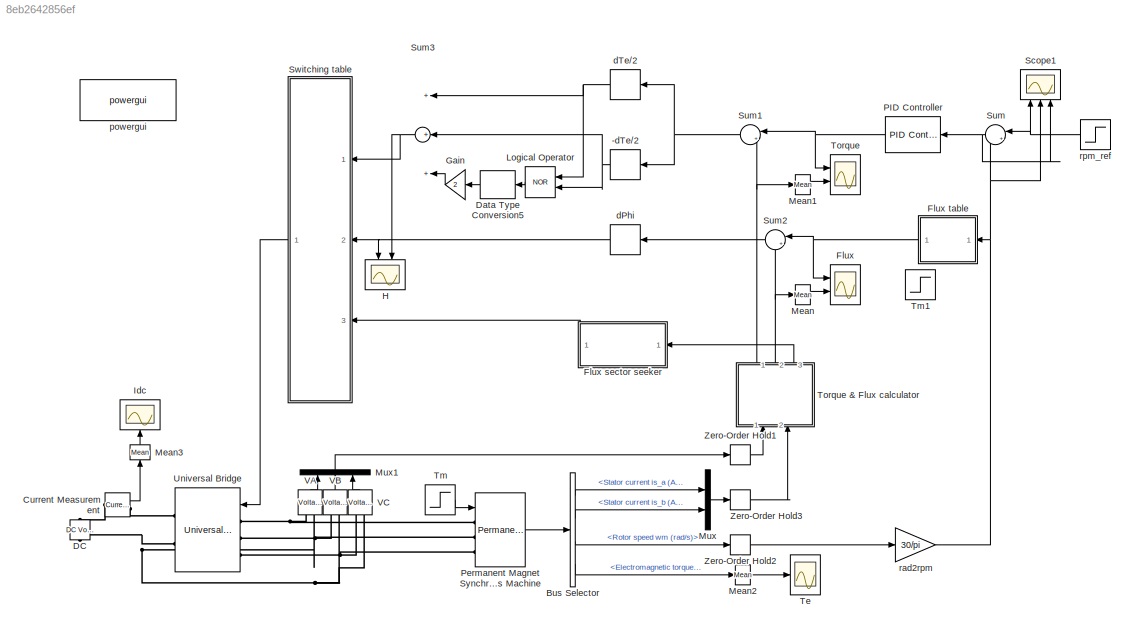
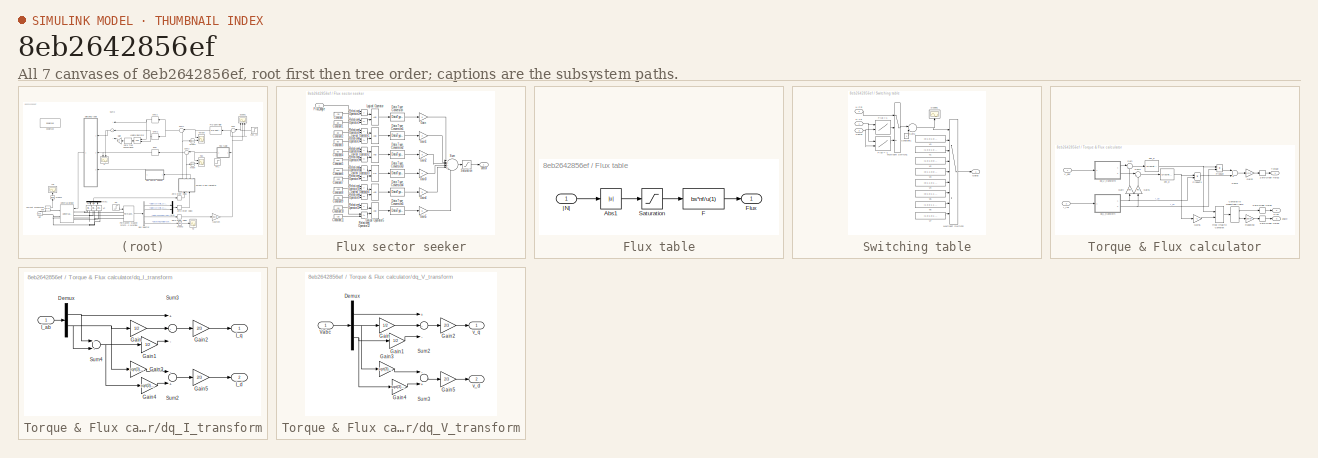
[diagram: thumbnail index - all 7 canvases of the model, root first then tree order]
MODEL slx_8eb2642856ef
KIND model
BLOCK [Relay] -dTe//2
  OffOutputValue = 3
  OffSwitchValue = -1/20000
  OnOutputValue = 0
  OnSwitchValue = 0
BLOCK [BusSelector] Bus Selector
  OutputSignals = Stator current is_a (A),Stator current is_b (A),Rotor speed wm (rad/s),Electromagnetic torque Te (N*m)
  Ports = [1, 4]
BLOCK [Reference] Current Measurement  REF=powerlib/Measurements/Current Measurement
  OutputType = Complex
  PSBequivalent = 0
  PhasorSimulation = off
  Ports = [0, 1, 0, 0, 0, 1, 1]
  SourceBlock = powerlib/Measurements/Current Measurement
  SourceType = Current Measurement
BLOCK [Reference] DC  REF=powerlib/Electrical
Sources/DC Voltage Source
  Amplitude = 48
  Measurements = None
  Ports = [0, 0, 0, 0, 0, 1, 1]
  SourceBlock = powerlib/Electrical\nSources/DC Voltage Source
  SourceType = DC Voltage Source
BLOCK [DataTypeConversion] Data Type Conversion5
BLOCK [Scope] Flux
  DataFormat = StructureWithTime
  Floating = off
  LimitDataPoints = off
  NumInputPorts = 2
  Ports = [2]
  SampleTime = 0
  SaveName = ScopeData2
  ShowLegends = off
  YMax = 0.01~0.011
  YMin = 0.001~0
  ZoomMode = yonly
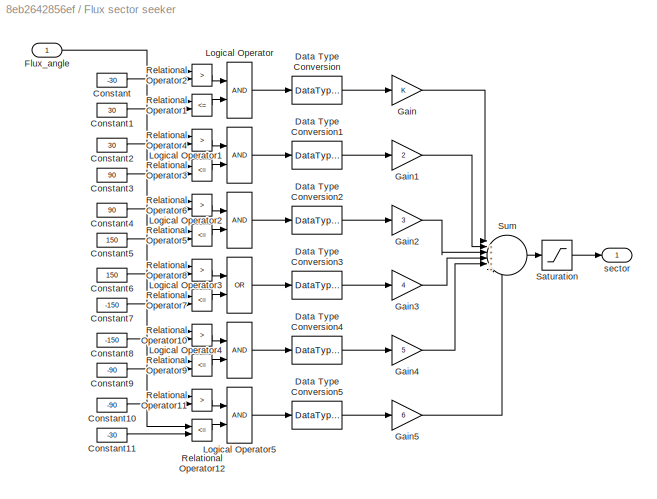
BLOCK [SubSystem] Flux sector seeker
  AncestorBlock = electricdrivelib/AC drives/DTC Induction Motor Drive/DTC/Flux sector seeker
  FunctionWithSeparateData = off
  MaskHideContents = off
  MinAlgLoopOccurrences = off
  Opaque = off
  Ports = [1, 1]
  PropExecContextOutsideSubsystem = off
  RTWSystemCode = Auto
  RequestExecContextInheritance = off
BLOCK [Constant] Flux sector seeker/Constant
  Value = -30
BLOCK [Constant] Flux sector seeker/Constant1
  Value = 30
BLOCK [Constant] Flux sector seeker/Constant10
  Value = -90
BLOCK [Constant] Flux sector seeker/Constant11
  Value = -30
BLOCK [Constant] Flux sector seeker/Constant2
  Value = 30
BLOCK [Constant] Flux sector seeker/Constant3
  Value = 90
BLOCK [Constant] Flux sector seeker/Constant4
  Value = 90
BLOCK [Constant] Flux sector seeker/Constant5
  Value = 150
BLOCK [Constant] Flux sector seeker/Constant6
  Value = 150
BLOCK [Constant] Flux sector seeker/Constant7
  Value = -150
BLOCK [Constant] Flux sector seeker/Constant8
  Value = -150
BLOCK [Constant] Flux sector seeker/Constant9
  Value = -90
BLOCK [DataTypeConversion] Flux sector seeker/Data Type Conversion
BLOCK [DataTypeConversion] Flux sector seeker/Data Type Conversion1
BLOCK [DataTypeConversion] Flux sector seeker/Data Type Conversion2
BLOCK [DataTypeConversion] Flux sector seeker/Data Type Conversion3
BLOCK [DataTypeConversion] Flux sector seeker/Data Type Conversion4
BLOCK [DataTypeConversion] Flux sector seeker/Data Type Conversion5
BLOCK [Inport] Flux sector seeker/Flux_angle
  IconDisplay = Port number
BLOCK [Gain] Flux sector seeker/Gain
BLOCK [Gain] Flux sector seeker/Gain1
  Gain = 2
BLOCK [Gain] Flux sector seeker/Gain2
  Gain = 3
BLOCK [Gain] Flux sector seeker/Gain3
  Gain = 4
BLOCK [Gain] Flux sector seeker/Gain4
  Gain = 5
BLOCK [Gain] Flux sector seeker/Gain5
  Gain = 6
BLOCK [Logic] Flux sector seeker/Logical Operator
  Ports = [2, 1]
BLOCK [Logic] Flux sector seeker/Logical Operator1
  Ports = [2, 1]
BLOCK [Logic] Flux sector seeker/Logical Operator2
  Ports = [2, 1]
BLOCK [Logic] Flux sector seeker/Logical Operator3
  Operator = OR
  Ports = [2, 1]
BLOCK [Logic] Flux sector seeker/Logical Operator4
  Ports = [2, 1]
BLOCK [Logic] Flux sector seeker/Logical Operator5
  Ports = [2, 1]
BLOCK [RelationalOperator] Flux sector seeker/Relational Operator1
  Operator = <=
  Ports = [2, 1]
BLOCK [RelationalOperator] Flux sector seeker/Relational Operator10
  Operator = >
  Ports = [2, 1]
BLOCK [RelationalOperator] Flux sector seeker/Relational Operator11
  Operator = >
  Ports = [2, 1]
BLOCK [RelationalOperator] Flux sector seeker/Relational Operator12
  Operator = <=
  Ports = [2, 1]
BLOCK [RelationalOperator] Flux sector seeker/Relational Operator2
  Operator = >
  Ports = [2, 1]
BLOCK [RelationalOperator] Flux sector seeker/Relational Operator3
  Operator = <=
  Ports = [2, 1]
BLOCK [RelationalOperator] Flux sector seeker/Relational Operator4
  Operator = >
  Ports = [2, 1]
BLOCK [RelationalOperator] Flux sector seeker/Relational Operator5
  Operator = <=
  Ports = [2, 1]
BLOCK [RelationalOperator] Flux sector seeker/Relational Operator6
  Operator = >
  Ports = [2, 1]
BLOCK [RelationalOperator] Flux sector seeker/Relational Operator7
  Operator = <=
  Ports = [2, 1]
BLOCK [RelationalOperator] Flux sector seeker/Relational Operator8
  Operator = >
  Ports = [2, 1]
BLOCK [RelationalOperator] Flux sector seeker/Relational Operator9
  Operator = <=
  Ports = [2, 1]
BLOCK [Saturate] Flux sector seeker/Saturation
  InputPortMap = u0
  LowerLimit = 1
  Ports = [1, 1]
  UpperLimit = 6
BLOCK [Sum] Flux sector seeker/Sum
  IconShape = round
  Inputs = |++++++
  Ports = [6, 1]
BLOCK [Outport] Flux sector seeker/sector
  IconDisplay = Port number
BLOCK [SubSystem] Flux table
  AncestorBlock = DriveInternalModels/AC drives/Speed Controller AC345/Speed Controller/Flux table
  FunctionWithSeparateData = off
  MaskHideContents = off
  MinAlgLoopOccurrences = off
  Opaque = off
  Ports = [1, 1]
  PropExecContextOutsideSubsystem = off
  RTWSystemCode = Auto
  RequestExecContextInheritance = off
BLOCK [Abs] Flux table/Abs1
BLOCK [Fcn] Flux table/F
  Expr = bs*nf/u(1)
BLOCK [Outport] Flux table/Flux
  IconDisplay = Port number
BLOCK [Saturate] Flux table/Saturation
  InputPortMap = u0
  LowerLimit = bs
  Ports = [1, 1]
  UpperLimit = inf
BLOCK [Inport] Flux table/|N|
  IconDisplay = Port number
BLOCK [Gain] Gain
  Gain = 2
BLOCK [Scope] H
  DataFormat = StructureWithTime
  Floating = off
  LimitDataPoints = off
  NumInputPorts = 2
  Ports = [2]
  SampleTime = 0
  SaveName = ScopeData6
  ShowLegends = off
  YMax = 3~4
  YMin = 0~0
  ZoomMode = xonly
BLOCK [Scope] Idc
  DataFormat = StructureWithTime
  Floating = off
  LimitDataPoints = off
  NumInputPorts = 1
  Ports = [1]
  SampleTime = 0
  ShowLegends = off
  YMax = 200
  YMin = -200
  ZoomMode = yonly
BLOCK [Logic] Logical Operator
  AllPortsSameDT = off
  Operator = NOR
  Ports = [2, 1]
BLOCK [Reference] Mean  REF=powerlib_meascontrol/Measurements/Mean
  Freq = 10
  Ports = [1, 1]
  SourceBlock = powerlib_meascontrol/Measurements/Mean
  SourceType = Mean
  Ts = 0
  Vinit = 0
BLOCK [Reference] Mean1  REF=powerlib_meascontrol/Measurements/Mean
  Freq = 10
  Ports = [1, 1]
  SourceBlock = powerlib_meascontrol/Measurements/Mean
  SourceType = Mean
  Ts = 0
  Vinit = 0
BLOCK [Reference] Mean2  REF=powerlib_meascontrol/Measurements/Mean
  Freq = 10
  Ports = [1, 1]
  SourceBlock = powerlib_meascontrol/Measurements/Mean
  SourceType = Mean
  Ts = 0
  Vinit = 0
BLOCK [Reference] Mean3  REF=powerlib_meascontrol/Measurements/Mean
  Freq = 10
  Ports = [1, 1]
  SourceBlock = powerlib_meascontrol/Measurements/Mean
  SourceType = Mean
  Ts = 0
  Vinit = 0
BLOCK [Mux] Mux
  DisplayOption = bar
  Inputs = 2
  Ports = [2, 1]
BLOCK [Mux] Mux1
  DisplayOption = bar
  Inputs = 3
  Ports = [3, 1]
BLOCK [Reference] PID Controller  REF=simulink/Continuous/PID Controller
  AntiWindupMode = none
  Controller = PID
  D = 0
  DOutDataTypeStr = Inherit: Inherit via internal rule
  DOutMax = []
  DOutMin = []
  DParamDataTypeStr = Inherit: Inherit via internal rule
  DParamMax = []
  DParamMin = []
  ExternalReset = none
  FilterContinuousStateAttributes = ''
  FilterMethod = Forward Euler
  FilterOutDataTypeStr = Inherit: Inherit via internal rule
  FilterOutMax = []
  FilterOutMin = []
  FilterRTWStateStorageClass = Auto
  FilterStateMustResolveToSignalObject = off
  Form = Parallel
  I = 0.001
  IOutDataTypeStr = Inherit: Inherit via internal rule
  IOutMax = []
  IOutMin = []
  IParamDataTypeStr = Inherit: Inherit via internal rule
  IParamMax = []
  IParamMin = []
  IgnoreLimit = off
  InitialConditionForFilter = 0
  InitialConditionForIntegrator = 0
  InitialConditionSource = internal
  IntegratorContinuousStateAttributes = ''
  IntegratorMethod = Forward Euler
  IntegratorOutDataTypeStr = Inherit: Inherit via internal rule
  IntegratorOutMax = []
  IntegratorOutMin = []
  IntegratorRTWStateStorageClass = Auto
  IntegratorStateMustResolveToSignalObject = off
  Kb = 1
  KbOutDataTypeStr = Inherit: Inherit via internal rule
  KbOutMax = []
  KbOutMin = []
  KbParamDataTypeStr = Inherit: Inherit via internal rule
  KbParamMax = []
  KbParamMin = []
  Kt = 1
  KtOutDataTypeStr = Inherit: Inherit via internal rule
  KtOutMax = []
  KtOutMin = []
  KtParamDataTypeStr = Inherit: Inherit via internal rule
  KtParamMax = []
  KtParamMin = []
  LimitOutput = on
  LinearizeAsGain = on
  LockScale = off
  LowerSaturationLimit = -20
  N = 100
  NOutDataTypeStr = Inherit: Inherit via internal rule
  NOutMax = []
  NOutMin = []
  NParamDataTypeStr = Inherit: Inherit via internal rule
  NParamMax = []
  NParamMin = []
  P = 0.0001
  POutDataTypeStr = Inherit: Inherit via internal rule
  POutMax = []
  POutMin = []
  PParamDataTypeStr = Inherit: Inherit via internal rule
  PParamMax = []
  PParamMin = []
  Ports = [1, 1]
  RndMeth = Floor
  SampleTime = 1
  SaturateOnIntegerOverflow = off
  SaturationOutDataTypeStr = Inherit: Same as input
  SaturationOutMax = []
  SaturationOutMin = []
  SourceBlock = simulink/Continuous/PID Controller
  SourceType = PID 1dof
  SumAccumDataTypeStr = Inherit: Inherit via internal rule
  SumDAccumDataTypeStr = Inherit: Inherit via internal rule
  SumDOutDataTypeStr = Inherit: Inherit via internal rule
  SumDOutMax = []
  SumDOutMin = []
  SumI1AccumDataTypeStr = Inherit: Inherit via internal rule
  SumI1OutDataTypeStr = Inherit: Inherit via internal rule
  SumI1OutMax = []
  SumI1OutMin = []
  SumI2AccumDataTypeStr = Inherit: Inherit via internal rule
  SumI2OutDataTypeStr = Inherit: Inherit via internal rule
  SumI2OutMax = []
  SumI2OutMin = []
  SumI3AccumDataTypeStr = Inherit: Inherit via internal rule
  SumI3OutDataTypeStr = Inherit: Inherit via internal rule
  SumI3OutMax = []
  SumI3OutMin = []
  SumOutDataTypeStr = Inherit: Inherit via internal rule
  SumOutMax = []
  SumOutMin = []
  TimeDomain = Continuous-time
  TrackingMode = off
  UpperSaturationLimit = 20
  ZeroCross = on
BLOCK [Reference] Permanent Magnet Synchronous Machine  REF=powerlib/Machines/Permanent Magnet
Synchronous Machine
  Flat = 120
  Flux = 0.0125
  FluxDistribution = Trapezoidal
  Inductance = 1e-4
  InitialConditions = [0,0, 0,0]
  InitialConditions5ph = [0 0 0 0 0 0]
  La = 0.000835
  MachineConstant = Torque Constant (N.m / A_peak)
  Mechanical = [1e-3 1e-7 4 0]
  MechanicalLoad = Torque Tm
  NbPhases = 3
  PolePairs = 4
  Ports = [1, 1, 0, 0, 0, 3]
  PresetModel = No
  RefAngle = 90 degrees behind phase A axis (modified Park)
  Resistance = 0.01
  RotorType = Round
  ShowDetailedParameters = on
  SourceBlock = powerlib/Machines/Permanent Magnet\nSynchronous Machine
  SourceType = Permanent Magnet Synchronous Machine
  TorqueCst = 0.1
  TsBlock = -1
  TsPowergui = 0
  VoltageCst = 10.472
  dqInductances = [8.5e-3,8.5e-3]
BLOCK [Scope] Scope1
  DataFormat = StructureWithTime
  Floating = off
  LimitDataPoints = off
  NumInputPorts = 3
  Ports = [3]
  SampleTime = 0
  SaveName = ScopeData1
  ShowLegends = off
  YMax = 5000~5000~1000
  YMin = -5000~-5000~-1000
  ZoomMode = xonly
BLOCK [Sum] Sum
  IconShape = round
  InputSameDT = off
  Inputs = |+-
  OutDataTypeStr = Inherit: Inherit via internal rule
  Ports = [2, 1]
  SaturateOnIntegerOverflow = off
BLOCK [Sum] Sum1
  IconShape = round
  InputSameDT = off
  Inputs = |+-
  OutDataTypeStr = Inherit: Inherit via internal rule
  Ports = [2, 1]
BLOCK [Sum] Sum2
  IconShape = round
  InputSameDT = off
  Inputs = |+-
  OutDataTypeStr = Inherit: Inherit via internal rule
  Ports = [2, 1]
BLOCK [Sum] Sum3
  InputSameDT = off
  Inputs = +++
  OutDataTypeStr = Inherit: Inherit via internal rule
  Ports = [3, 1]
BLOCK [SubSystem] Switching table
  AncestorBlock = electricdrivelib/AC drives/DTC Induction Motor Drive/DTC/Switching table
  FunctionWithSeparateData = off
  MaskHideContents = off
  MinAlgLoopOccurrences = off
  Opaque = off
  Ports = [3, 1]
  PropExecContextOutsideSubsystem = off
  RTWSystemCode = Auto
  RequestExecContextInheritance = off
BLOCK [Constant] Switching table/Constant1
BLOCK [Lookup2D] Switching table/Flux = -1
  ColumnIndex = [1;2;3;4;5;6]
  InputSameDT = off
  RowIndex = [1;2;3]
  Table = [3 4 5 6 1 2;7 0 7 0 7 0;5 6 1 2 3 4]
BLOCK [Lookup2D] Switching table/Flux = 1
  ColumnIndex = [1;2;3;4;5;6]
  InputSameDT = off
  RowIndex = [1;2;3]
  Table = [2 3 4 5 6 1;0 7 0 7 0 7;6 1 2 3 4 5]
BLOCK [Outport] Switching table/Gates
  IconDisplay = Port number
BLOCK [Inport] Switching table/H Phi
  IconDisplay = Port number
  Port = 2
BLOCK [Inport] Switching table/H Te
  IconDisplay = Port number
BLOCK [MultiPortSwitch] Switching table/Multiport Switch1
  InputSameDT = off
  Inputs = 2
  Ports = [3, 1]
BLOCK [MultiPortSwitch] Switching table/Multiport Switch2
  InputSameDT = off
  Inputs = 8
  Ports = [9, 1]
BLOCK [Scope] Switching table/Scope1
  DataFormat = StructureWithTime
  Floating = off
  LimitDataPoints = off
  NumInputPorts = 1
  Ports = [1]
  SampleTime = 0
  SaveName = ScopeData4
  ShowLegends = off
  YMax = 10
  YMin = -1
  ZoomMode = xonly
BLOCK [Inport] Switching table/Sector
  IconDisplay = Port number
  Port = 3
BLOCK [Sum] Switching table/Sum1
  IconShape = round
  InputSameDT = off
  Inputs = |++
  OutDataTypeStr = Inherit: Inherit via internal rule
  Ports = [2, 1]
BLOCK [Constant] Switching table/v0
  Value = [0 1 0 1 0 1]
BLOCK [Constant] Switching table/v1
  Value = [1 0 0 1 0 1]
BLOCK [Constant] Switching table/v2
  Value = [1 0 1 0 0 1]
BLOCK [Constant] Switching table/v3
  Value = [0 1 1 0 0 1]
BLOCK [Constant] Switching table/v4
  Value = [0 1 1 0 1 0]
BLOCK [Constant] Switching table/v5
  Value = [0 1 0 1 1 0]
BLOCK [Constant] Switching table/v6
  Value = [1 0 0 1 1 0]
BLOCK [Constant] Switching table/v7
  Value = [1 0 1 0 1 0]
BLOCK [Scope] Te
  DataFormat = StructureWithTime
  Floating = off
  LimitDataPoints = off
  NumInputPorts = 1
  Ports = [1]
  SampleTime = 0
  SaveName = ScopeData5
  ShowLegends = off
  YMax = 4
  YMin = -4
  ZoomMode = yonly
BLOCK [Step] Tm
  After = 0
  SampleTime = 0
  Time = 2
BLOCK [Step] Tm1
  After = 0.05
  Before = 0.01
  SampleTime = 0
  Time = 2
BLOCK [Scope] Torque
  DataFormat = StructureWithTime
  Floating = off
  LimitDataPoints = off
  NumInputPorts = 2
  Ports = [2]
  SampleTime = 0
  SaveName = ScopeData3
  ShowLegends = off
  YMax = 5~5
  YMin = -5~-5
  ZoomMode = yonly
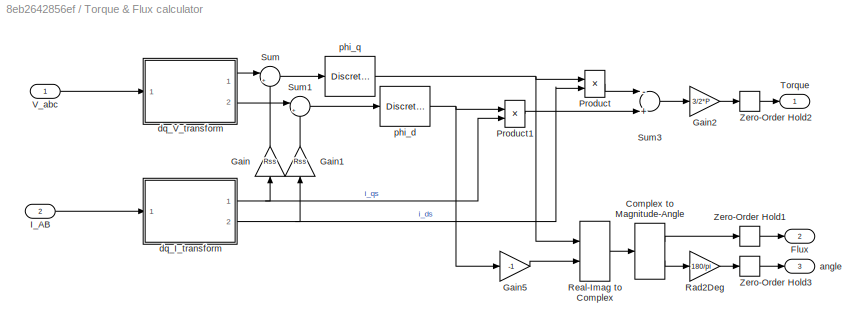
BLOCK [SubSystem] Torque & Flux calculator
  AncestorBlock = electricdrivelib/AC drives/DTC Induction Motor Drive/DTC/Torque & Flux calculator
  FunctionWithSeparateData = off
  MaskHideContents = off
  MinAlgLoopOccurrences = off
  Opaque = off
  Ports = [2, 3]
  PropExecContextOutsideSubsystem = off
  RTWSystemCode = Auto
  RequestExecContextInheritance = off
BLOCK [ComplexToMagnitudeAngle] Torque & Flux calculator/Complex to Magnitude-Angle
  Ports = [1, 2]
BLOCK [Outport] Torque & Flux calculator/Flux
  IconDisplay = Port number
  Port = 2
BLOCK [Gain] Torque & Flux calculator/Gain
  Gain = Rss
BLOCK [Gain] Torque & Flux calculator/Gain1
  Gain = Rss
BLOCK [Gain] Torque & Flux calculator/Gain2
  Gain = 3/2*P
BLOCK [Gain] Torque & Flux calculator/Gain5
  Gain = -1
BLOCK [Inport] Torque & Flux calculator/I_AB
  IconDisplay = Port number
  Port = 2
BLOCK [Product] Torque & Flux calculator/Product
  InputSameDT = off
  Ports = [2, 1]
  RndMeth = Floor
BLOCK [Product] Torque & Flux calculator/Product1
  InputSameDT = off
  Ports = [2, 1]
  RndMeth = Floor
BLOCK [Gain] Torque & Flux calculator/Rad2Deg
  Gain = 180/pi
BLOCK [RealImagToComplex] Torque & Flux calculator/Real-Imag to Complex
  Ports = [2, 1]
BLOCK [Sum] Torque & Flux calculator/Sum
  IconShape = round
  InputSameDT = off
  Inputs = |+-
  OutDataTypeStr = Inherit: Inherit via internal rule
  Ports = [2, 1]
BLOCK [Sum] Torque & Flux calculator/Sum1
  IconShape = round
  InputSameDT = off
  Inputs = |+-
  OutDataTypeStr = Inherit: Inherit via internal rule
  Ports = [2, 1]
BLOCK [Sum] Torque & Flux calculator/Sum3
  InputSameDT = off
  Inputs = -+
  OutDataTypeStr = Inherit: Inherit via internal rule
  Ports = [2, 1]
BLOCK [Outport] Torque & Flux calculator/Torque
  IconDisplay = Port number
BLOCK [Inport] Torque & Flux calculator/V_abc
  IconDisplay = Port number
BLOCK [ZeroOrderHold] Torque & Flux calculator/Zero-Order Hold1
  SampleTime = Ts
BLOCK [ZeroOrderHold] Torque & Flux calculator/Zero-Order Hold2
  SampleTime = Ts
BLOCK [ZeroOrderHold] Torque & Flux calculator/Zero-Order Hold3
  SampleTime = Ts
BLOCK [Outport] Torque & Flux calculator/angle
  IconDisplay = Port number
  Port = 3
BLOCK [SubSystem] Torque & Flux calculator/dq_I_transform
  FunctionWithSeparateData = off
  MaskHideContents = off
  MinAlgLoopOccurrences = off
  Opaque = off
  Ports = [1, 2]
  PropExecContextOutsideSubsystem = off
  RTWSystemCode = Auto
  RequestExecContextInheritance = off
BLOCK [Demux] Torque & Flux calculator/dq_I_transform/Demux
  Outputs = 2
  Ports = [1, 2]
BLOCK [Gain] Torque & Flux calculator/dq_I_transform/Gain
  Gain = 1/2
BLOCK [Gain] Torque & Flux calculator/dq_I_transform/Gain1
  Gain = 1/2
BLOCK [Gain] Torque & Flux calculator/dq_I_transform/Gain2
  Gain = 2/3
BLOCK [Gain] Torque & Flux calculator/dq_I_transform/Gain3
  Gain = sqrt(3)/2
BLOCK [Gain] Torque & Flux calculator/dq_I_transform/Gain4
  Gain = sqrt(3)/2
BLOCK [Gain] Torque & Flux calculator/dq_I_transform/Gain5
  Gain = 2/3
BLOCK [Inport] Torque & Flux calculator/dq_I_transform/I_ab
  IconDisplay = Port number
BLOCK [Outport] Torque & Flux calculator/dq_I_transform/I_d
  IconDisplay = Port number
  Port = 2
BLOCK [Outport] Torque & Flux calculator/dq_I_transform/I_q
  IconDisplay = Port number
BLOCK [Sum] Torque & Flux calculator/dq_I_transform/Sum2
  Inputs = -+
  Ports = [2, 1]
BLOCK [Sum] Torque & Flux calculator/dq_I_transform/Sum3
  Inputs = +--
  Ports = [3, 1]
BLOCK [Sum] Torque & Flux calculator/dq_I_transform/Sum4
  Inputs = --
  Ports = [2, 1]
BLOCK [SubSystem] Torque & Flux calculator/dq_V_transform
  FunctionWithSeparateData = off
  MaskHideContents = off
  MinAlgLoopOccurrences = off
  Opaque = off
  Ports = [1, 2]
  PropExecContextOutsideSubsystem = off
  RTWSystemCode = Auto
  RequestExecContextInheritance = off
BLOCK [Demux] Torque & Flux calculator/dq_V_transform/Demux
  Outputs = 3
  Ports = [1, 3]
BLOCK [Gain] Torque & Flux calculator/dq_V_transform/Gain
  Gain = 1/2
BLOCK [Gain] Torque & Flux calculator/dq_V_transform/Gain1
  Gain = 1/2
BLOCK [Gain] Torque & Flux calculator/dq_V_transform/Gain2
  Gain = 2/3
BLOCK [Gain] Torque & Flux calculator/dq_V_transform/Gain3
  Gain = sqrt(3)/2
BLOCK [Gain] Torque & Flux calculator/dq_V_transform/Gain4
  Gain = sqrt(3)/2
BLOCK [Gain] Torque & Flux calculator/dq_V_transform/Gain5
  Gain = 2/3
BLOCK [Sum] Torque & Flux calculator/dq_V_transform/Sum2
  Inputs = +--
  Ports = [3, 1]
BLOCK [Sum] Torque & Flux calculator/dq_V_transform/Sum3
  Inputs = -+
  Ports = [2, 1]
BLOCK [Inport] Torque & Flux calculator/dq_V_transform/Vabc
  IconDisplay = Port number
BLOCK [Outport] Torque & Flux calculator/dq_V_transform/v_d
  IconDisplay = Port number
  Port = 2
BLOCK [Outport] Torque & Flux calculator/dq_V_transform/v_q
  IconDisplay = Port number
BLOCK [DiscreteIntegrator] Torque & Flux calculator/phi_d
  ICPrevOutput = DiscIntNeverNeededParam
  ICPrevScaledInput = DiscIntNeverNeededParam
  IntegratorMethod = Integration: Trapezoidal
  Ports = [1, 1]
  SampleTime = Ts
BLOCK [DiscreteIntegrator] Torque & Flux calculator/phi_q
  ICPrevOutput = DiscIntNeverNeededParam
  ICPrevScaledInput = DiscIntNeverNeededParam
  IntegratorMethod = Integration: Trapezoidal
  Ports = [1, 1]
  SampleTime = Ts
BLOCK [Reference] Universal Bridge  REF=powerlib/Power
Electronics/Universal Bridge
  Arms = 3
  Device = MOSFET / Diodes
  ForwardVoltage = 0
  ForwardVoltages = [  0  0  ]
  GTOparameters = [ 10e-6 , 20e-6 ]
  IGBTparameters = [ 1e-6 , 2e-6 ]
  Lon = 0
  Measurements = None
  Measurements_2 = None
  Ports = [1, 0, 0, 0, 0, 3, 2]
  Ron = 1e-3
  SnubberCapacitance = 1e-6
  SnubberResistance = 5000
  SourceBlock = powerlib/Power\nElectronics/Universal Bridge
  SourceType = Universal Bridge
  converterType = Rectifier
BLOCK [Reference] VA  REF=powerlib/Measurements/Voltage Measurement
  OutputType = Complex
  PSBequivalent = 0
  PhasorSimulation = off
  Ports = [0, 1, 0, 0, 0, 2]
  SourceBlock = powerlib/Measurements/Voltage Measurement
  SourceType = Voltage Measurement
BLOCK [Reference] VB  REF=powerlib/Measurements/Voltage Measurement
  OutputType = Complex
  PSBequivalent = 0
  PhasorSimulation = off
  Ports = [0, 1, 0, 0, 0, 2]
  SourceBlock = powerlib/Measurements/Voltage Measurement
  SourceType = Voltage Measurement
BLOCK [Reference] VC  REF=powerlib/Measurements/Voltage Measurement
  OutputType = Complex
  PSBequivalent = 0
  PhasorSimulation = off
  Ports = [0, 1, 0, 0, 0, 2]
  SourceBlock = powerlib/Measurements/Voltage Measurement
  SourceType = Voltage Measurement
BLOCK [ZeroOrderHold] Zero-Order Hold1
  SampleTime = 1/(10000)
BLOCK [ZeroOrderHold] Zero-Order Hold2
  SampleTime = 1/(10000)
BLOCK [ZeroOrderHold] Zero-Order Hold3
  SampleTime = 1/(10000)
BLOCK [Relay] dPhi
  OffOutputValue = 2
  OffSwitchValue = -1/20000
  OnSwitchValue = 1/20000
BLOCK [Relay] dTe//2
  OffSwitchValue = 0
  OnSwitchValue = 1/20000
BLOCK [Reference] powergui  REF=powerlib/powergui
  DisableRonSwitches = off
  DisableSnubberDevices = off
  DisableVfSwitches = off
  DisplayEquations = off
  DisplayStyle = 1
  EnableUseOfTLC = off
  ErrMax = 1e-4
  Frange = [0:2:500]
  FreqAxis = off
  FunctionMessages = off
  HookPort = off
  Interpol = off
  Iterations = 50
  MaxFrequency = 1000
  Pbase = 100e6
  Ports = []
  Priority = 2
  ResistiveCurrentMeasurement = off
  RestoreLinks = warning
  RmsSteady = 1
  SPID = off
  SampleTime = 1e-5
  ShowGrid = off
  SolverType = Backward Euler
  SourceBlock = powerlib/powergui
  SourceType = PSB option menu block
  StartTime = 0.0
  SwTol = 0
  Ts = 0
  UnitsV = kV
  UnitsW = MW
  UserDataPersistent = on
  Xlog = on
  Ylog = off
  ZoomFFT = on
  cycles = 1
  display = off
  echomessages = off
  frequency = 60
  frequencyindice = 0
  frequencyindicesteady = 1
  fundamental = 60
  methode = off
  save = off
  variable = ZData
  x0status = blocks
BLOCK [Gain] rad2rpm
  Gain = 30/pi
  OutDataTypeStr = Inherit: Inherit via internal rule
  ParamDataTypeStr = Inherit: Inherit via internal rule
  SaturateOnIntegerOverflow = off
BLOCK [Step] rpm_ref
  After = 4000
  Before = 4000
  SampleTime = 0
  Time = 5
NET -dTe//2:1 -> Logical Operator:2, Sum3:2
LINE Bus Selector:1 -> Mux:1
LINE Bus Selector:2 -> Mux:2
LINE Bus Selector:3 -> Zero-Order Hold2:1
LINE Bus Selector:4 -> Mean2:1
LINE Current Measurement:1 -> Mean3:1
LINE Data Type Conversion5:1 -> Gain:1
LINE Flux sector seeker:1 -> Switching table:3
NET Flux table:1 -> Flux:1, Sum2:1
LINE Gain:1 -> Sum3:3
LINE Logical Operator:1 -> Data Type Conversion5:1
LINE Mean1:1 -> Torque:2
LINE Mean2:1 -> Te:1
LINE Mean3:1 -> Idc:1
LINE Mean:1 -> Flux:2
LINE Mux1:1 -> Zero-Order Hold1:1
LINE Mux:1 -> Zero-Order Hold3:1
NET PID Controller:1 -> Sum1:1, Torque:1
LINE Permanent Magnet Synchronous Machine:1 -> Bus Selector:1
NET Sum1:1 -> -dTe//2:1, dTe//2:1
LINE Sum2:1 -> dPhi:1
NET Sum3:1 -> H:2, Switching table:1
NET Sum:1 -> PID Controller:1, Scope1:3
LINE Switching table:1 -> Universal Bridge:1
LINE Tm:1 -> Permanent Magnet Synchronous Machine:1
NET Torque & Flux calculator:1 -> Mean1:1, Sum1:2
NET Torque & Flux calculator:2 -> Mean:1, Sum2:2
LINE Torque & Flux calculator:3 -> Flux sector seeker:1
LINE VA:1 -> Mux1:1
LINE VB:1 -> Mux1:2
LINE VC:1 -> Mux1:3
LINE Zero-Order Hold1:1 -> Torque & Flux calculator:1
LINE Zero-Order Hold2:1 -> rad2rpm:1
LINE Zero-Order Hold3:1 -> Torque & Flux calculator:2
NET dPhi:1 -> H:1, Switching table:2
NET dTe//2:1 -> Logical Operator:1, Sum3:1
NET rad2rpm:1 -> Flux table:1, Scope1:2, Sum:2
NET rpm_ref:1 -> Scope1:1, Sum:1
PLINE Current Measurement:LConn1 -- DC:RConn1
PLINE Current Measurement:RConn1 -- Universal Bridge:RConn1
PNET net1: DC:LConn1 -- Universal Bridge:RConn2 -- VA:LConn2 -- VB:LConn2 -- VC:LConn2
PNET net2: Permanent Magnet Synchronous Machine:LConn1 -- Universal Bridge:LConn1 -- VA:LConn1
PNET net3: Permanent Magnet Synchronous Machine:LConn2 -- Universal Bridge:LConn2 -- VB:LConn1
PNET net4: Permanent Magnet Synchronous Machine:LConn3 -- Universal Bridge:LConn3 -- VC:LConn1
note: NET lines group one-source signal fan-out (src -> all destinations, sorted); 1:1 wires keep LINE; PNET lines group multi-terminal physical nets as a canonical sorted terminal list (undirected conserving connections); 2-terminal nets keep the pairwise PLINE form
